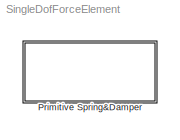
MODEL SingleDofForceElement
KIND library
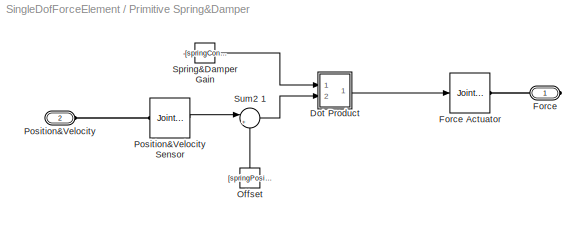
BLOCK [SubSystem] Primitive Spring&Damper
  AncestorBlock = SingleDofForceElement/Primitive Spring&Damper
  MaskCallbackString = ||||||||||
  MaskDescription = A spring/damper element for a single degree of freedom. This subsystem implements a force relation of the type\nF = -k*(x-x0) + -b*v, where k, b, and x are the spring constant, the damper constant, and the spring position offset, respectively.\n\nTo set values for the spring/damper parameters, please click and open the Force Element block directly.\n
  MaskEnableString = on,on,off,on,on,on,on,on,on,on,on
  MaskHelp = To set values for the spring/damper parameters, please click and open the Force Element block directly.\n\n
  MaskIconFrame = on
  MaskIconOpaque = on
  MaskIconRotate = none
  MaskIconUnits = autoscale
  MaskInitialization = mech_primitivespringdamper;
  MaskPromptString = Primitive:|Position Offset:|Velocity Offset:|Spring Constant:|Damping Constant:|Linear Position Units:|Angular Position Units:|Linear Velocity Units:|Angular Velocity Units:|Force Units:|Torque Units:
  MaskSelfModifiable = on
  MaskStyleString = popup(P1|P2|P3|R1|R2|R3),edit,edit,edit,edit,popup(km|m|cm|mm|mi|ft|in),popup(deg|rad),popup(km/s|m/s|cm/s|mm/s|mi/s|ft/s|in/s),popup(deg/s|rad/s),popup(N|lb),popup(N-m|ft-lb)
  MaskTabNameString = ,,,,,,,,,,
  MaskToolTipString = on,on,on,on,on,on,on,on,on,on,on
  MaskTunableValueString = off,on,on,on,on,off,off,off,off,off,off
  MaskValueString = P1|0|0|0|0|km|deg|km/s|deg/s|N|N-m
  MaskVarAliasString = ,,,,,,,,,,
  MaskVariables = actuatedPrimitive=&1;springPositionOffset=@2;damperVelocityOffset=@3;springConstant=@4;damperConstant=@5;positionUnits=&6;angleUnits=&7;velocityUnits=&8;angleVelocityUnits=&9;forceUnits=&10;torqueUnits=&11;
  MaskVisibilityString = on,on,off,on,on,on,on,on,on,on,on
  MinAlgLoopOccurrences = off
  Ports = [0, 0, 0, 0, 0, 1, 1]
  RTWSystemCode = Auto
  TreatAsAtomicUnit = off
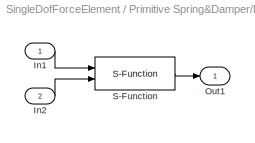
BLOCK [SubSystem] Primitive Spring&Damper/Dot Product
  AncestorBlock = simulink/Math\nOperations/Dot Product
  MaskDescription = Inner (dot) product.\ny = sum(conj(u1).*u2). The operand u1 corresponds to the top (or left) input port.
  MaskDisplay = patch([x*r+0.5],[y*r+0.5])
  MaskHelp = Computes the inner (dot) product of the inputs: sum(u1.*u2).  The inputs are vectors of the same length. Output is a scalar.
  MaskIconFrame = on
  MaskIconOpaque = on
  MaskIconRotate = none
  MaskIconUnits = normalized
  MaskInitialization = t=(0:.1:2*pi)';\nx=cos(t);\ny=sin(t);\nr=0.05;
  MaskType = Dot Product
  MinAlgLoopOccurrences = off
  Ports = [2, 1]
  RTWSystemCode = Auto
  TreatAsAtomicUnit = off
BLOCK [Inport] Primitive Spring&Damper/Dot Product/In1
  IconDisplay = Port number
  LatchInput = off
  Port = 1
BLOCK [Inport] Primitive Spring&Damper/Dot Product/In2
  IconDisplay = Port number
  LatchInput = off
  Port = 2
BLOCK [Outport] Primitive Spring&Damper/Dot Product/Out1
  IconDisplay = Port number
BLOCK [S-Function] Primitive Spring&Damper/Dot Product/S-Function
  FunctionName = sdotproduct
  Ports = [2, 1]
BLOCK [PMIOPort] Primitive Spring&Damper/Force
  Port = 1
  Side = Right
BLOCK [Reference] Primitive Spring&Damper/Force Actuator  REF=mblibv1/Sensors & \nActuators/Joint Actuator
  AccelerationUnits = m/s^2
  ActiveIO = off
  ActuationStyle = Force
  AngleUnits = deg
  ArcAccelerationUnits = deg/s^2
  ArcVelocityUnits = deg/s
  ClassName = JointActuator
  CoordPositionUnits = m
  DialogClass = MechanicalActuatorBlock
  ForceUnits = N
  PhysicalDomain = Mechanical
  PortType = blob
  Ports = [1, 0, 0, 0, 0, 0, 1]
  Primitive = P1
  ReferenceFrame = Absolute (INERTIAL)
  SourceBlock = mblibv1/Sensors & \nActuators/Joint Actuator
  SourceType = msb
  Tag = __orphan__
  TorqueUnits = N-m
  VelocityUnits = m/s
  Width = 1
BLOCK [Constant] Primitive Spring&Damper/Offset
  Value = [springPositionOffset damperVelocityOffset]
BLOCK [PMIOPort] Primitive Spring&Damper/Position&Velocity
  Port = 2
  Side = Left
BLOCK [Reference] Primitive Spring&Damper/Position&Velocity Sensor  REF=mblibv1/Sensors & \nActuators/Joint Sensor
  Acceleration = off
  AccelerationUnits = m/s^2
  ActiveIO = off
  Angle = on
  AngleUnits = deg
  ArcAcceleration = off
  ArcAccelerationUnits = deg/s^2
  ArcVelocity = on
  ArcVelocityUnits = deg/s
  ClassName = JointSensor
  CoordPosition = on
  CoordPositionUnits = km
  DialogClass = MechanicalSensorBlock
  Force = off
  ForceUnits = N
  Muxed = on
  OutputVector = [ 1 1 1 1 ]
  PhysicalDomain = Mechanical
  PortType = blob
  Ports = [0, 1, 0, 0, 0, 1]
  Pose = off
  Primitive = P1
  Quaternion = off
  QuaternionDDT = off
  QuaternionDT = off
  QuaternionUnits = deg
  ReactionForce = off
  ReactionForceUnits = N
  ReactionMoment = off
  ReactionMomentUnits = N-m
  ReactionReferenceFrame = Absolute (World)
  ReactionSensedSide = Base
  ReferenceFrame = Absolute (INERTIAL)
  SourceBlock = mblibv1/Sensors & \nActuators/Joint Sensor
  SourceType = msb
  Tag = __orphan__
  Torque = off
  TorqueUnits = N-m
  Velocity = on
  VelocityUnits = km/s
  Width = 1
BLOCK [Constant] Primitive Spring&Damper/Spring&Damper Gain
  Value = -[springConstant damperConstant]
BLOCK [Sum] Primitive Spring&Damper/Sum2 1
  IconShape = round
  InputSameDT = off
  Inputs = |+-
  OutDataTypeMode = Inherit via internal rule
  Ports = [2, 1]
LINE Primitive Spring&Damper/Dot Product/In1:1 -> Primitive Spring&Damper/Dot Product/S-Function:1
LINE Primitive Spring&Damper/Dot Product/In2:1 -> Primitive Spring&Damper/Dot Product/S-Function:2
LINE Primitive Spring&Damper/Dot Product/S-Function:1 -> Primitive Spring&Damper/Dot Product/Out1:1
LINE Primitive Spring&Damper/Dot Product:1 -> Primitive Spring&Damper/Force Actuator:1
LINE Primitive Spring&Damper/Offset:1 -> Primitive Spring&Damper/Sum2 1:2
LINE Primitive Spring&Damper/Position&Velocity Sensor:1 -> Primitive Spring&Damper/Sum2 1:1
LINE Primitive Spring&Damper/Spring&Damper Gain:1 -> Primitive Spring&Damper/Dot Product:1
LINE Primitive Spring&Damper/Sum2 1:1 -> Primitive Spring&Damper/Dot Product:2
PLINE Primitive Spring&Damper/Force Actuator:RConn1 -- Primitive Spring&Damper/Force:RConn1
PLINE Primitive Spring&Damper/Position&Velocity Sensor:LConn1 -- Primitive Spring&Damper/Position&Velocity:RConn1
